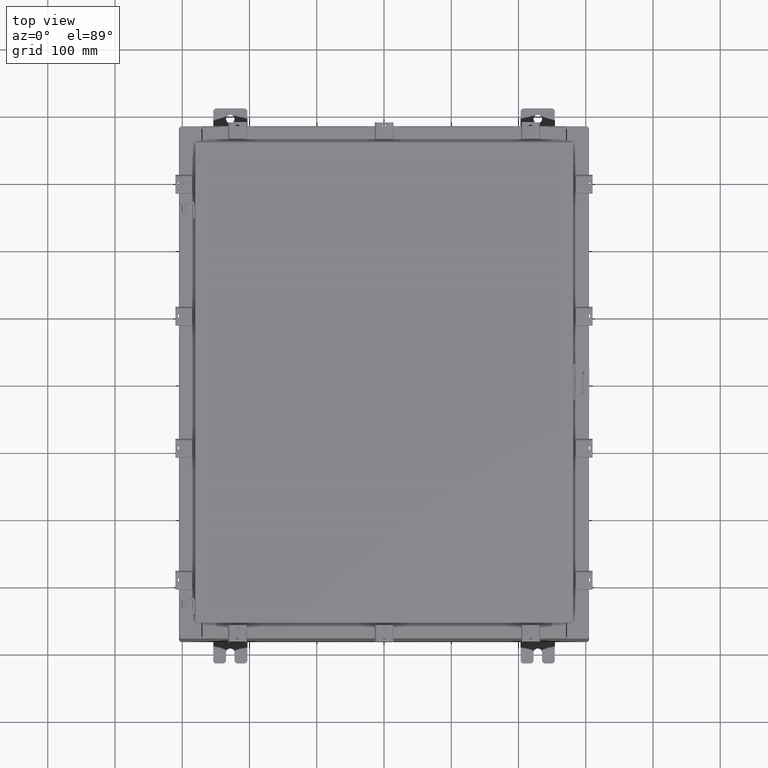
[diagram: clean part render]
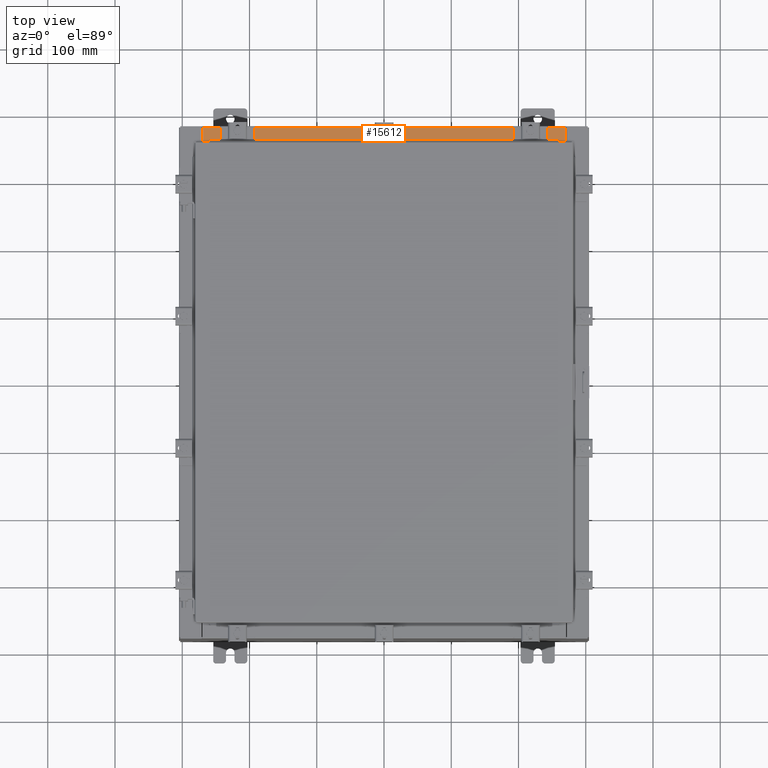
[diagram: same view with one face highlighted and labeled with its STEP entity id]
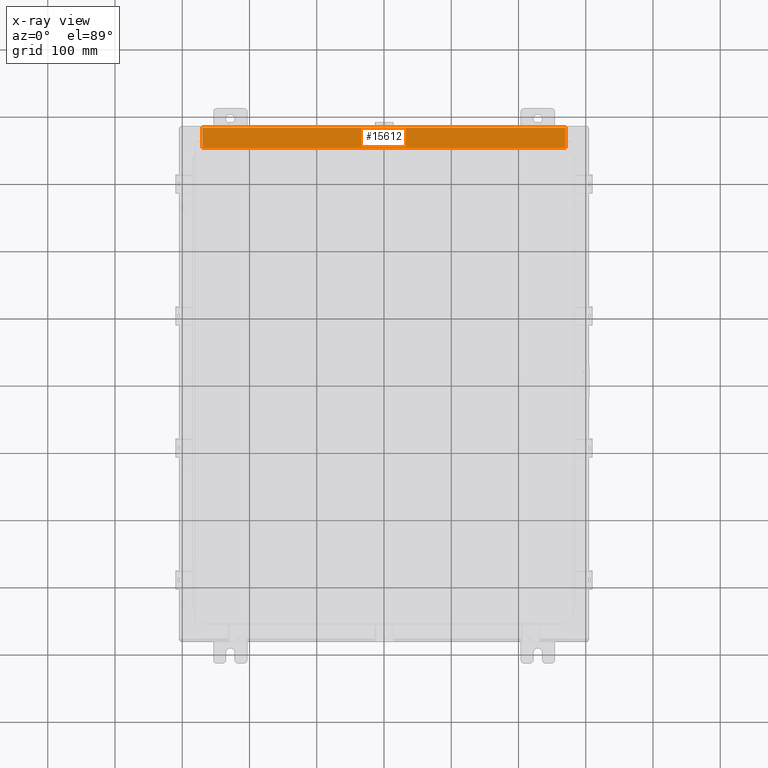
[diagram: x-ray of the same camera — body ghosted, the highlighted face saturated]
A machine part, top view. The second image highlights one B-rep face of the part: STEP entity #15612.
The next image is the same camera in x-ray: the body ghosted, the highlighted face saturated — about 0% of this face is hidden behind the body in this view.
In plain terms, the highlighted planar face has unit normal (0, 0, 1).
Its self-contained STEP definition (entity closure, byte-faithful):
#285 = CARTESIAN_POINT ( 'NONE',  ( -10.63720000000000200, -0.07469999999999973900, 6.000000000000001800 ) ) ;
#355 = CARTESIAN_POINT ( 'NONE',  ( 10.63720000000000400, -0.08770000000000002800, 6.000000000000001800 ) ) ;
#366 = DIRECTION ( 'NONE',  ( -0.0000000000000000000, 1.000000000000000000, -2.674785894579892700E-015 ) ) ;
#1545 = LINE ( 'NONE', #285, #20016 ) ;
#2032 = DIRECTION ( 'NONE',  ( -1.000000000000000000, 0.0000000000000000000, 0.0000000000000000000 ) ) ;
#2413 = PLANE ( 'NONE',  #5361 ) ;
#3219 = ORIENTED_EDGE ( 'NONE', *, *, #20746, .T. ) ;
#3527 = FACE_OUTER_BOUND ( 'NONE', #7682, .T. ) ;
#3984 = LINE ( 'NONE', #9791, #21916 ) ;
#4684 = CARTESIAN_POINT ( 'NONE',  ( 10.63720000000000400, -1.287299999999998800, 6.000000000000003600 ) ) ;
#5361 = AXIS2_PLACEMENT_3D ( 'NONE', #18524, #7789, #20324 ) ;
#5886 = VERTEX_POINT ( 'NONE', #355 ) ;
#7578 = CARTESIAN_POINT ( 'NONE',  ( -10.63720000000000200, -0.08770000000000026400, 6.000000000000001800 ) ) ;
#7682 = EDGE_LOOP ( 'NONE', ( #16549, #17245, #9140, #3219 ) ) ;
#7789 = DIRECTION ( 'NONE',  ( 0.0000000000000000000, 2.674785894579892700E-015, 1.000000000000000000 ) ) ;
#8972 = VECTOR ( 'NONE', #13630, 39.37007874015748100 ) ;
#9140 = ORIENTED_EDGE ( 'NONE', *, *, #11455, .F. ) ;
#9238 = VECTOR ( 'NONE', #2032, 39.37007874015748100 ) ;
#9540 = LINE ( 'NONE', #4684, #8972 ) ;
#9791 = CARTESIAN_POINT ( 'NONE',  ( 10.63720000000000200, -1.300299999999999800, 6.000000000000006200 ) ) ;
#9804 = LINE ( 'NONE', #18110, #9238 ) ;
#11090 = CARTESIAN_POINT ( 'NONE',  ( 10.63720000000000200, -1.287299999999998800, 6.000000000000006200 ) ) ;
#11455 = EDGE_CURVE ( 'NONE', #5886, #18349, #3984, .T. ) ;
#12218 = EDGE_CURVE ( 'NONE', #18349, #19569, #9540, .T. ) ;
#13013 = CARTESIAN_POINT ( 'NONE',  ( -10.63720000000000200, -1.287299999999998100, 6.000000000000004400 ) ) ;
#13630 = DIRECTION ( 'NONE',  ( -1.000000000000000000, 0.0000000000000000000, 0.0000000000000000000 ) ) ;
#15612 = ADVANCED_FACE ( 'NONE', ( #3527 ), #2413, .T. ) ;
#16549 = ORIENTED_EDGE ( 'NONE', *, *, #22802, .F. ) ;
#17245 = ORIENTED_EDGE ( 'NONE', *, *, #12218, .F. ) ;
#18110 = CARTESIAN_POINT ( 'NONE',  ( -3.422455537835030400E-018, -0.08770000000000026400, 6.000000000000001800 ) ) ;
#18349 = VERTEX_POINT ( 'NONE', #11090 ) ;
#18524 = CARTESIAN_POINT ( 'NONE',  ( -3.422455537835030400E-018, 1.610972251716582100E-014, 6.000000000000001800 ) ) ;
#19569 = VERTEX_POINT ( 'NONE', #13013 ) ;
#20016 = VECTOR ( 'NONE', #366, 39.37007874015748100 ) ;
#20324 = DIRECTION ( 'NONE',  ( 0.0000000000000000000, -1.000000000000000000, 2.674785894579892700E-015 ) ) ;
#20516 = DIRECTION ( 'NONE',  ( -0.0000000000000000000, -1.000000000000000000, 3.566381192773190000E-015 ) ) ;
#20746 = EDGE_CURVE ( 'NONE', #5886, #22829, #9804, .T. ) ;
#21916 = VECTOR ( 'NONE', #20516, 39.37007874015748100 ) ;
#22802 = EDGE_CURVE ( 'NONE', #19569, #22829, #1545, .T. ) ;
#22829 = VERTEX_POINT ( 'NONE', #7578 ) ;